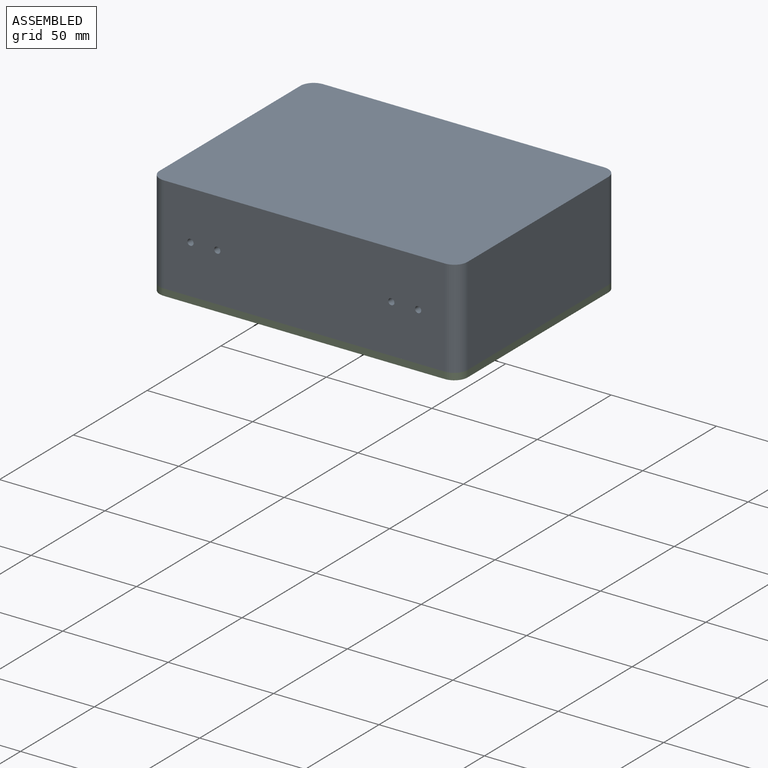
[diagram: assembled view]
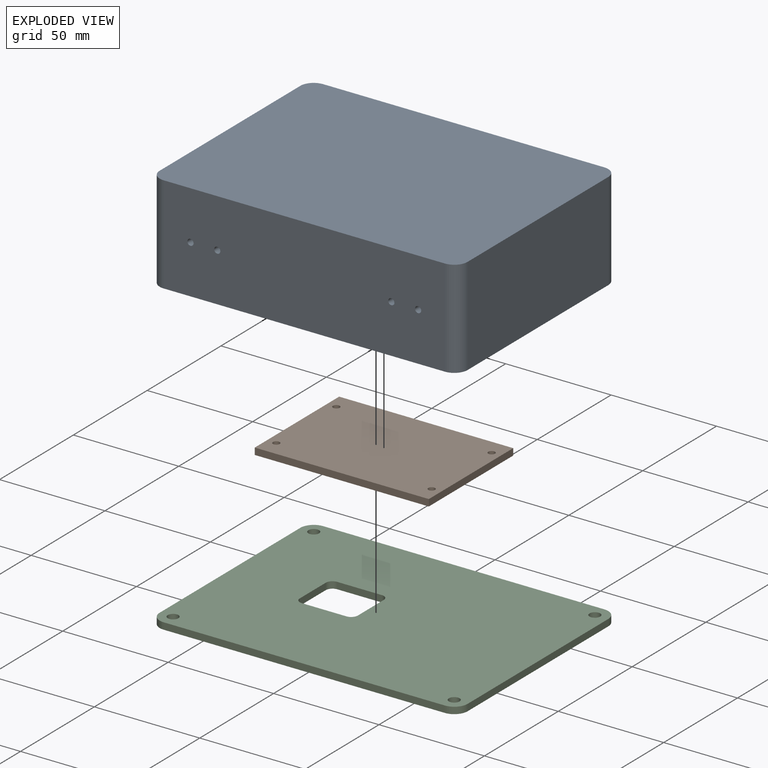
[diagram: exploded view]
GUIDED TOUR — MATED ASSEMBLY (Onshape document a12db232746676983e9030d2, AutoMate assembly a12db232746676983e9030d2_516264cdc32a40ea5eddc112_df7424a95817ac5e793745eb_default)

This assembly has 3 components, labeled P0..P2 below (a component is one placed occurrence of a part; the same part can appear more than once), held together by 4 mates. A mate is a constraint between two components; its type names the relative motion it leaves free:
  FASTENED — locks the two components together rigidly (no relative motion),
  PLANAR — leaves sliding in the plane through the listed point (normal = the listed direction) and rotation about that normal free,
  SLIDER — leaves translation along the listed axis free.
Axis/direction vectors are unit vectors and 'through' points are millimeter coordinates, both in the assembly's world frame.

MATES
  1. FASTENED "Fastened 1": P1 <-> P0, direction (0.000, 0.000, 1.000) through (14.76, 92.85, 113.88) mm
  2. PLANAR "Planar 2": P1 <-> P0, direction (0.000, 0.000, 1.000) through (51.59, 72.53, 113.88) mm
  3. PLANAR "Planar 1": P2 <-> P0, direction (0.000, 0.000, 1.000) through (-15.08, 126.51, 75.78) mm
  4. SLIDER "Slider 1": P2 <-> P0, axis (0.000, 0.000, -1.000) through (118.27, 120.16, 72.61) mm

ASSEMBLY ORDER
  1. P0 — the base component [order verified]
  2. P1 [order verified]
  3. P2 [order verified]
Order-tag legend:
  [order verified] — this step's position reverses a verified removal order: the component was checked to insert without passing through the ones already placed.

Of the 3 components, 2 carry the full construction recipe — the FeatureScript program that regenerates the part's solid from scratch; the rest are supplied as boundary geometry only.
Each toured component is shown spotlighted twice — in the assembled view, then in the exploded view, where a leader line traces a displaced component back to its assembled socket (saturated green if recipe-attached, orange if geometry-only; every other component desaturated gray) — followed by its recipe or geometry summary and the mates that hold it.
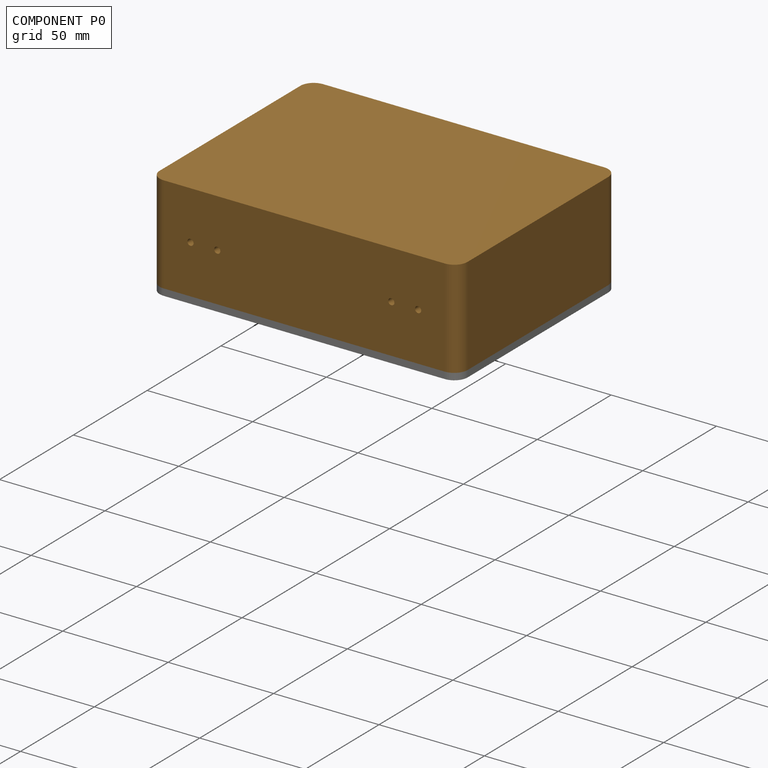
[diagram: component P0 — assembled]
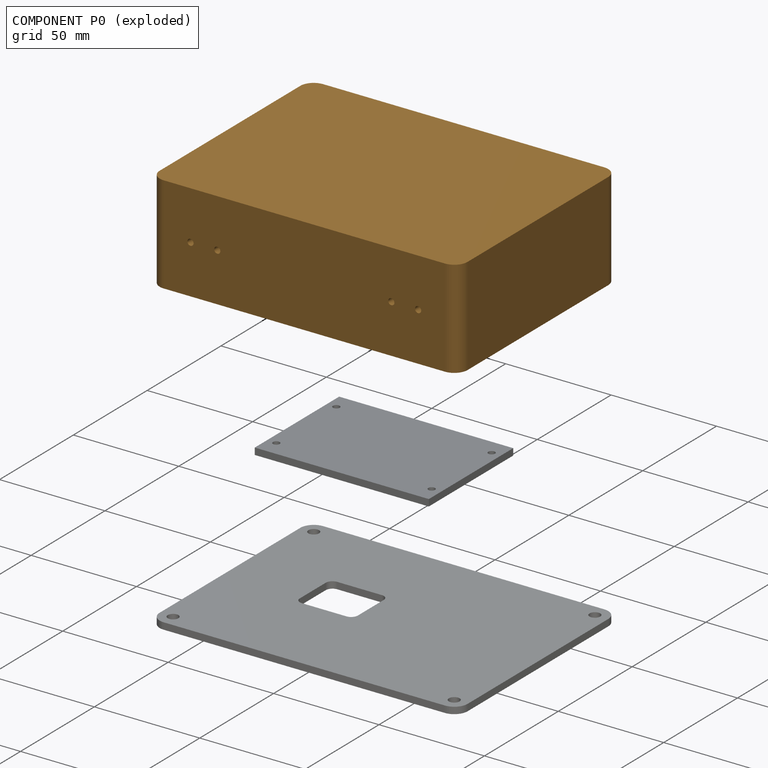
[diagram: component P0 — exploded]
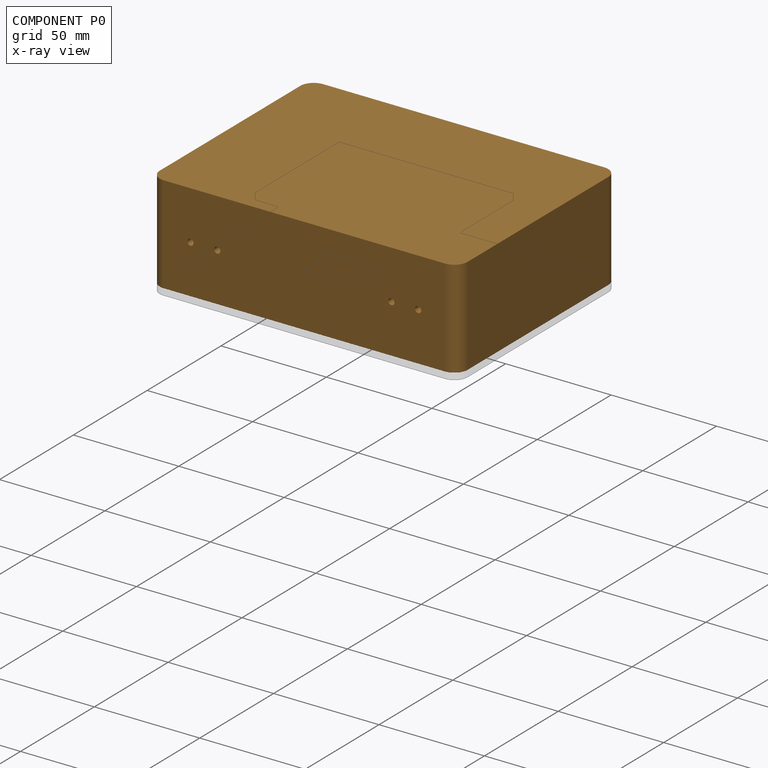
[diagram: component P0 — x-ray view]
COMPONENT P0 — geometry summary (no construction recipe available for this part):
  bounding box: 147.5 x 109.4 x 46.4 mm
  B-rep topology: 1 solid, 118 faces, 548 edges
  volume: 477823 mm^3 (64% of its bounding box)
  symmetry: mirror-symmetric across its x mid-plane
Held by: FASTENED mate "Fastened 1" to P1; PLANAR mate "Planar 2" to P1; PLANAR mate "Planar 1" to P2; SLIDER mate "Slider 1" to P2.
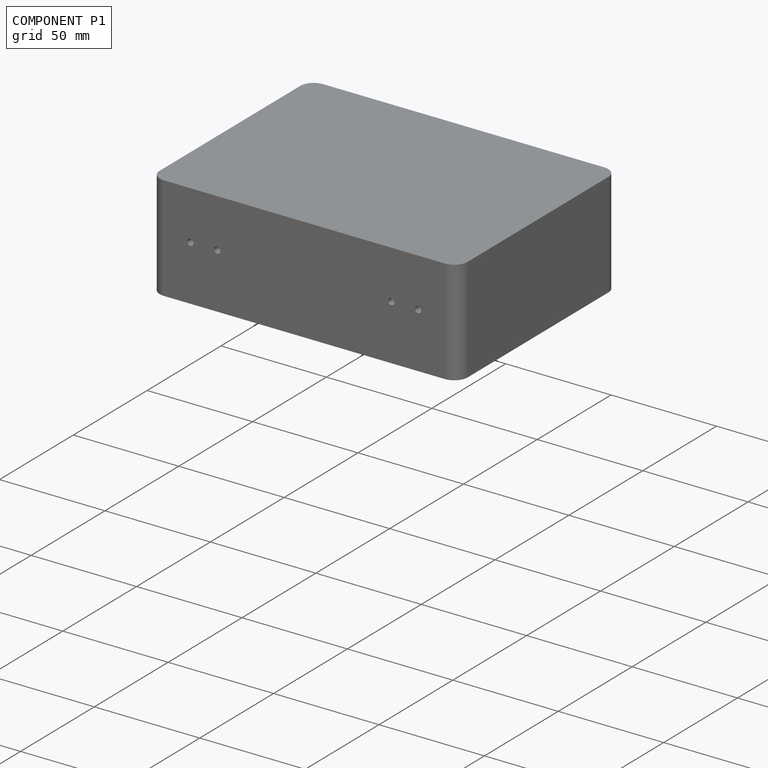
[diagram: component P1 — assembled]
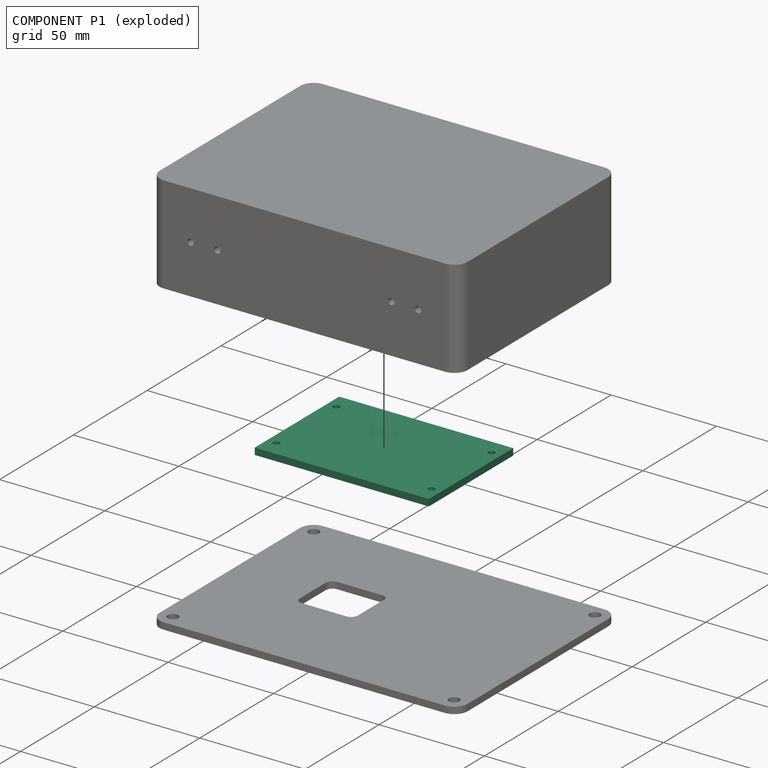
[diagram: component P1 — exploded]
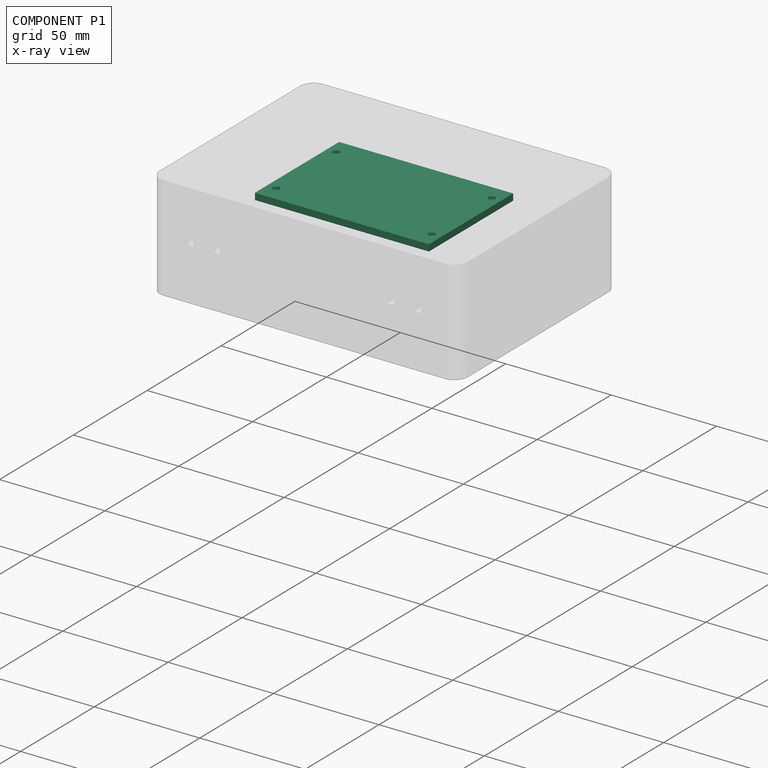
[diagram: component P1 — x-ray view]
COMPONENT P1 — recipe-attached (CADFS 00446652, mesh-verified: the recipe's output STEP matches this component's geometry to below the mesh-comparison resolution (tessellation chordal tolerance ~0.151 mm)).
Held by: FASTENED mate "Fastened 1" to P0; PLANAR mate "Planar 2" to P0.
Construction recipe (FeatureScript — the CAD program that rebuilds this solid; sketch coordinates are in the units given by the * unit suffixes, e.g. mm):

FeatureScript 1511;
import(path : "onshape/std/geometry.fs", version : "1511.0");
import(path : "onshape/std/common.fs", version : "1511.0");
const mm = millimeter;
const VERTEX = EntityType.VERTEX;
const EDGE = EntityType.EDGE;
const FACE = EntityType.FACE;
const BODY = EntityType.BODY;
function v(x, y){return vector(x, y);}
function OD(order){return orderDisambiguation(order);}
function OSD(set){return originalSetDisambiguation(set);}
function TD(topology){return topologyDisambiguation(topology);}
function TDD(query){return trueDependencyDisambiguation(query);}
function sQuery(a, b, c) {return sketchEntityQuery(a, b, c);}

annotation { "Feature Type Name" : "Feature", "Feature Type Description" : "" }
export const myFeature = defineFeature(function(context is Context, id is Id, definition is map)
    precondition{}
    {
        {
            var Q0;
            Q0=qCreatedBy(makeId("Top.planeOp"),FACE);
            var sketch = newSketch(context, id + "F0", { "sketchPlane" : qUnion([Q0])});
            skLineSegment(sketch, "E0.bottom", {"start": v(36.83, -20.32) * mm, "end": v(-36.83, -20.32) * mm});
            skLineSegment(sketch, "E0.top", {"start": v(36.83, 20.32) * mm, "end": v(-36.83, 20.32) * mm});
            skLineSegment(sketch, "E0.left", {"start": v(36.83, -20.32) * mm, "end": v(36.83, 20.32) * mm});
            skLineSegment(sketch, "E0.right", {"start": v(-36.83, -20.32) * mm, "end": v(-36.83, 20.32) * mm});
            skPoint(sketch, "E0.middle", {"position": v(0, 0) * mm});
            skSolve(sketch);
        }
        {
            var Q0;
            Q0=makeQuery(id+"F0.imprint","IMPRINT",FACE,{"disambiguationData":[TD([[makeQuery(id+"F0.imprint","IMPRINT",EDGE,{"derivedFrom":sQuery(id+"F0.wireOp",EDGE,"E0.bottom")}),-1.0]])]});
            var sketch = newSketch(context, id + "F1", { "sketchPlane" : qUnion([Q0])});
            skLineSegment(sketch, "E1.bottom", {"start": v(41.28, -28.58) * mm, "end": v(-41.28, -28.58) * mm});
            skLineSegment(sketch, "E1.top", {"start": v(41.28, 28.58) * mm, "end": v(-41.28, 28.58) * mm});
            skLineSegment(sketch, "E1.left", {"start": v(41.28, -28.58) * mm, "end": v(41.28, 28.57) * mm});
            skLineSegment(sketch, "E1.right", {"start": v(-41.28, -28.58) * mm, "end": v(-41.28, 28.57) * mm});
            skPoint(sketch, "E1.middle", {"position": v(0, 0) * mm});
            skSolve(sketch);
        }
        {
            var Q0;
            Q0 = qSketchRegion(id + "F1", true);
            extrude(context, id + "F2", {"entities" : qUnion([Q0]), "depth" : 3.17 * mm});
        }
        {
            var Q0;
            Q0=sQuery(id+"F0.wireOp",VERTEX,"E0.bottom.start");
            var Q1;
            Q1=sQuery(id+"F0.wireOp",VERTEX,"E0.left.end");
            var Q2;
            Q2=sQuery(id+"F0.wireOp",VERTEX,"E0.right.end");
            var Q3;
            Q3=sQuery(id+"F0.wireOp",VERTEX,"E0.right.start");
            var Q4;
            Q4=makeQuery(id+"F2.opExtrude","SWEPT_BODY",BODY,{"disambiguationData":[OSD([sQuery(id+"F1.wireOp",EDGE,"E1.bottom"),sQuery(id+"F1.wireOp",EDGE,"E1.top"),sQuery(id+"F1.wireOp",EDGE,"E1.left"),sQuery(id+"F1.wireOp",EDGE,"E1.right")])]});
            hole(context, id + "F3", {"style" : HoleStyle.SIMPLE, "endStyle" : HoleEndStyle.THROUGH, "oppositeDirection" : true, "holeDiameter" : 3.17 * mm, "isTappedThrough" : true, "tappedDepth" : 12.7 * mm, "tapClearance" : 3, "startFromSketch" : true, "locations" : qUnion([Q0, Q1, Q2, Q3]), "scope" : qUnion([Q4])});
        }
    });
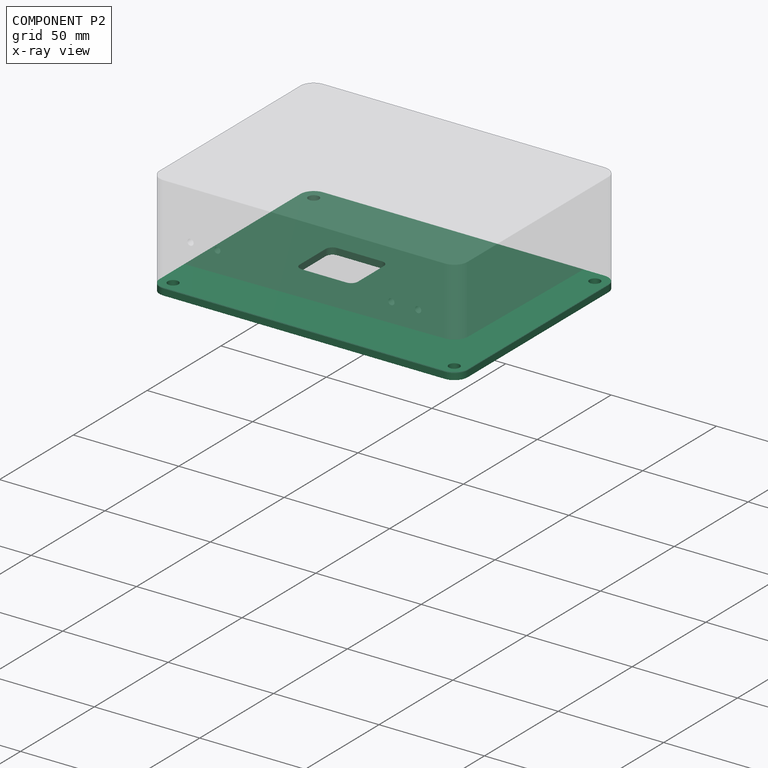
[diagram: component P2 — x-ray view]
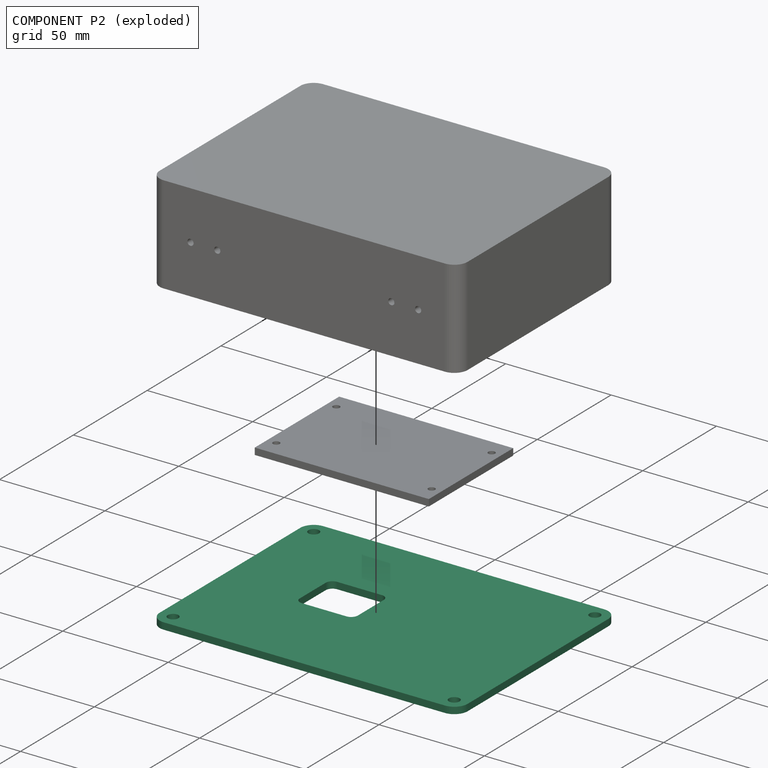
[diagram: component P2 — exploded]
COMPONENT P2 — recipe-attached (CADFS 00446653, mesh-verified: the recipe's output STEP matches this component's geometry to below the mesh-comparison resolution (tessellation chordal tolerance ~0.272 mm)).
Held by: PLANAR mate "Planar 1" to P0; SLIDER mate "Slider 1" to P0.
Construction recipe (FeatureScript — the CAD program that rebuilds this solid; sketch coordinates are in the units given by the * unit suffixes, e.g. mm):

FeatureScript 1511;
import(path : "onshape/std/geometry.fs", version : "1511.0");
import(path : "onshape/std/common.fs", version : "1511.0");
const mm = millimeter;
const VERTEX = EntityType.VERTEX;
const EDGE = EntityType.EDGE;
const FACE = EntityType.FACE;
const BODY = EntityType.BODY;
function v(x, y){return vector(x, y);}
function OD(order){return orderDisambiguation(order);}
function OSD(set){return originalSetDisambiguation(set);}
function TD(topology){return topologyDisambiguation(topology);}
function TDD(query){return trueDependencyDisambiguation(query);}
function sQuery(a, b, c) {return sketchEntityQuery(a, b, c);}

annotation { "Feature Type Name" : "Feature", "Feature Type Description" : "" }
export const myFeature = defineFeature(function(context is Context, id is Id, definition is map)
    precondition{}
    {
        {
            var Q0;
            Q0=qCreatedBy(makeId("Top.planeOp"),FACE);
            var sketch = newSketch(context, id + "F0", { "sketchPlane" : qUnion([Q0])});
            skLineSegment(sketch, "E0.bottom", {"start": v(66.68, 53.98) * mm, "end": v(-66.67, 53.98) * mm});
            skLineSegment(sketch, "E0.top", {"start": v(66.67, -53.98) * mm, "end": v(-66.67, -53.98) * mm});
            skLineSegment(sketch, "E0.left", {"start": v(73.03, 47.63) * mm, "end": v(73.02, -47.63) * mm});
            skLineSegment(sketch, "E0.right", {"start": v(-73.02, 47.63) * mm, "end": v(-73.03, -47.63) * mm});
            skPoint(sketch, "E0.middle", {"position": v(0, 0) * mm});
            skPoint(sketch, "E1.visualSharp", {"position": v(-73.03, -53.98) * mm});
            skArc(sketch, "E1.filletArc", {"start": v(-73.03, -47.63) * mm, "mid": v(-71.17, -52.12) * mm, "end": v(-66.67, -53.98) * mm});
            skPoint(sketch, "E2.visualSharp", {"position": v(-73.02, 53.98) * mm});
            skArc(sketch, "E2.filletArc", {"start": v(-66.67, 53.98) * mm, "mid": v(-71.17, 52.12) * mm, "end": v(-73.02, 47.63) * mm});
            skPoint(sketch, "E3.visualSharp", {"position": v(73.02, -53.98) * mm});
            skArc(sketch, "E3.filletArc", {"start": v(66.67, -53.98) * mm, "mid": v(71.17, -52.12) * mm, "end": v(73.02, -47.63) * mm});
            skPoint(sketch, "E4.visualSharp", {"position": v(73.03, 53.98) * mm});
            skArc(sketch, "E4.filletArc", {"start": v(73.03, 47.63) * mm, "mid": v(71.17, 52.12) * mm, "end": v(66.68, 53.98) * mm});
            skSolve(sketch);
        }
        {
            var Q0;
            Q0 = qSketchRegion(id + "F0", true);
            extrude(context, id + "F1", {"entities" : qUnion([Q0]), "depth" : 3.17 * mm});
        }
        {
            var Q0;
            Q0=makeQuery(id+"F1.opExtrude","CAP_FACE",FACE,{"disambiguationData":[OSD([sQuery(id+"F0.wireOp",EDGE,"E0.bottom"),sQuery(id+"F0.wireOp",EDGE,"E0.top"),sQuery(id+"F0.wireOp",EDGE,"E0.left"),sQuery(id+"F0.wireOp",EDGE,"E0.right"),sQuery(id+"F0.wireOp",EDGE,"E1.filletArc"),sQuery(id+"F0.wireOp",EDGE,"E2.filletArc"),sQuery(id+"F0.wireOp",EDGE,"E3.filletArc"),sQuery(id+"F0.wireOp",EDGE,"E4.filletArc")])],"isStart":false});
            var sketch = newSketch(context, id + "F2", { "sketchPlane" : qUnion([Q0])});
            skLineSegment(sketch, "E5.bottom", {"start": v(66.68, -47.62) * mm, "end": v(-66.68, -47.63) * mm});
            skLineSegment(sketch, "E5.top", {"start": v(66.67, 47.63) * mm, "end": v(-66.68, 47.63) * mm});
            skLineSegment(sketch, "E5.left", {"start": v(66.68, -47.62) * mm, "end": v(66.67, 47.63) * mm});
            skLineSegment(sketch, "E5.right", {"start": v(-66.67, -47.63) * mm, "end": v(-66.68, 47.63) * mm});
            skPoint(sketch, "E5.middle", {"position": v(0, 0) * mm});
            skSolve(sketch);
        }
        {
            var Q0;
            Q0=sQuery(id+"F2.wireOp",VERTEX,"E5.top.end");
            var Q1;
            Q1=sQuery(id+"F2.wireOp",VERTEX,"E5.left.end");
            var Q2;
            Q2=sQuery(id+"F2.wireOp",VERTEX,"E5.left.start");
            var Q3;
            Q3=sQuery(id+"F2.wireOp",VERTEX,"E5.right.start");
            var Q4;
            Q4=makeQuery(id+"F1.opExtrude","SWEPT_BODY",BODY,{"disambiguationData":[OSD([sQuery(id+"F0.wireOp",EDGE,"E0.bottom"),sQuery(id+"F0.wireOp",EDGE,"E0.top"),sQuery(id+"F0.wireOp",EDGE,"E0.left"),sQuery(id+"F0.wireOp",EDGE,"E0.right"),sQuery(id+"F0.wireOp",EDGE,"E1.filletArc"),sQuery(id+"F0.wireOp",EDGE,"E2.filletArc"),sQuery(id+"F0.wireOp",EDGE,"E3.filletArc"),sQuery(id+"F0.wireOp",EDGE,"E4.filletArc")])]});
            hole(context, id + "F3", {"style" : HoleStyle.SIMPLE, "endStyle" : HoleEndStyle.THROUGH, "holeDiameter" : 5.08 * mm, "isTappedThrough" : true, "tappedDepth" : 12.7 * mm, "tapClearance" : 3, "startFromSketch" : true, "locations" : qUnion([Q0, Q1, Q2, Q3]), "scope" : qUnion([Q4])});
        }
        {
            var Q0;
            Q0=makeQuery(id+"F1.opExtrude","CAP_FACE",FACE,{"disambiguationData":[OSD([sQuery(id+"F0.wireOp",EDGE,"E0.bottom"),sQuery(id+"F0.wireOp",EDGE,"E0.top"),sQuery(id+"F0.wireOp",EDGE,"E0.left"),sQuery(id+"F0.wireOp",EDGE,"E0.right"),sQuery(id+"F0.wireOp",EDGE,"E1.filletArc"),sQuery(id+"F0.wireOp",EDGE,"E2.filletArc"),sQuery(id+"F0.wireOp",EDGE,"E3.filletArc"),sQuery(id+"F0.wireOp",EDGE,"E4.filletArc")])],"isStart":false});
            var sketch = newSketch(context, id + "F4", { "sketchPlane" : qUnion([Q0])});
            skLineSegment(sketch, "E6.bottom", {"start": v(-11.64, -8.78) * mm, "end": v(-32.81, -8.78) * mm});
            skLineSegment(sketch, "E6.top", {"start": v(-11.64, 15.13) * mm, "end": v(-32.81, 15.13) * mm});
            skLineSegment(sketch, "E6.left", {"start": v(-8.46, -5.6) * mm, "end": v(-8.46, 11.95) * mm});
            skLineSegment(sketch, "E6.right", {"start": v(-35.99, -5.6) * mm, "end": v(-35.99, 11.95) * mm});
            skPoint(sketch, "E6.middle", {"position": v(-22.22, 3.18) * mm});
            skPoint(sketch, "E7.visualSharp", {"position": v(-35.99, 15.13) * mm});
            skArc(sketch, "E7.filletArc", {"start": v(-32.81, 15.13) * mm, "mid": v(-35.06, 14.2) * mm, "end": v(-35.99, 11.95) * mm});
            skPoint(sketch, "E8.visualSharp", {"position": v(-35.99, -8.78) * mm});
            skArc(sketch, "E8.filletArc", {"start": v(-35.99, -5.6) * mm, "mid": v(-35.06, -7.85) * mm, "end": v(-32.81, -8.78) * mm});
            skPoint(sketch, "E9.visualSharp", {"position": v(-8.46, -8.78) * mm});
            skArc(sketch, "E9.filletArc", {"start": v(-11.64, -8.78) * mm, "mid": v(-9.4, -7.85) * mm, "end": v(-8.46, -5.6) * mm});
            skPoint(sketch, "E10.visualSharp", {"position": v(-8.46, 15.13) * mm});
            skArc(sketch, "E10.filletArc", {"start": v(-8.46, 11.95) * mm, "mid": v(-9.4, 14.2) * mm, "end": v(-11.64, 15.13) * mm});
            skSolve(sketch);
        }
        {
            var Q0;
            Q0 = qSketchRegion(id + "F4", true);
            extrude(context, id + "F5", {"entities" : qUnion([Q0]), "operationType" : NewBodyOperationType.REMOVE, "endBound" : BoundingType.THROUGH_ALL, "oppositeDirection" : true, "depth" : 25.4 * mm});
        }
    });
PROVENANCE & LICENSES
Assembly (occurrences, transforms, mates, per-part STEP geometry): AutoMate dataset, Zenodo record 7776208, CC0.
Construction recipes: CADFS (HuggingFace VladPyatov/CADFS, CC-BY-4.0, layered over the ABC dataset), FeatureScript reconstruction programs keyed by ABC model id.
Join: ABC meta listings map ABC model id -> Onshape documentId; within a shared document, parts are matched by geometric signature (bounding-box dims + volume at 0.1% relative tolerance, exact B-rep face/solid counts).
Verification: 2 of this assembly's 3 components carry a recipe attachment, and every attachment is mesh-verified: the CADFS STEP and the AutoMate member STEP were compared as meshes in their shared local frame (symmetric sampled-point-to-mesh distance); worst across the 2 attachments: below the mesh-comparison resolution (tessellation chordal tolerance ~0.272 mm) on a 182 mm part.
Renders: orthographic iso camera (az 35 / el 25); the floor grid conveys scale (grid pitch printed in each image; no ruler). In the exploded view each component is displaced by its stored offset vector: the offsets alone carry the explosion direction (mate normal/axis signs are not orientation cues and do not encode it), and separation distances are assigned per mate-chain, not proportionally to assembly-order depth.
